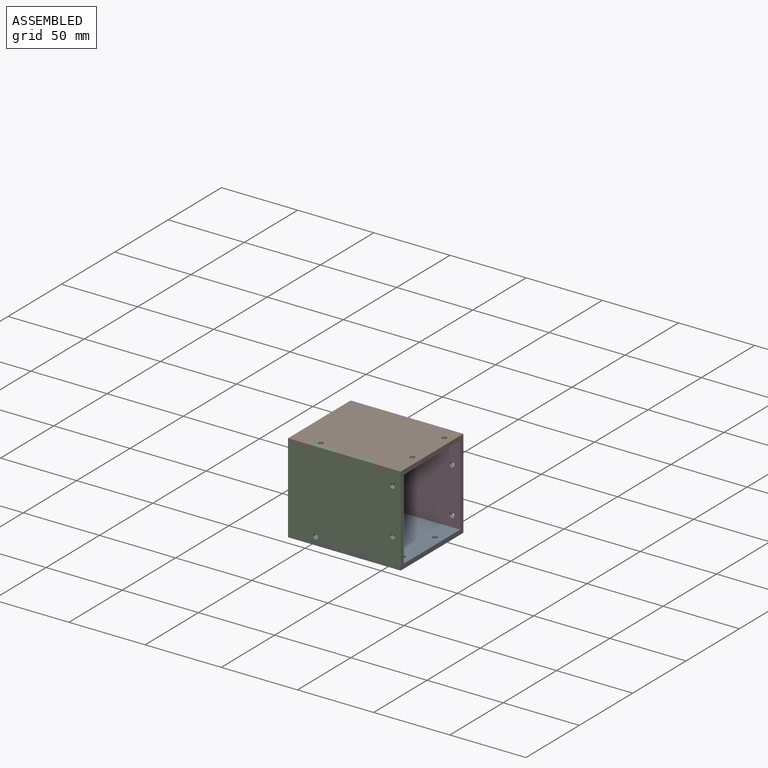
[diagram: assembled view]
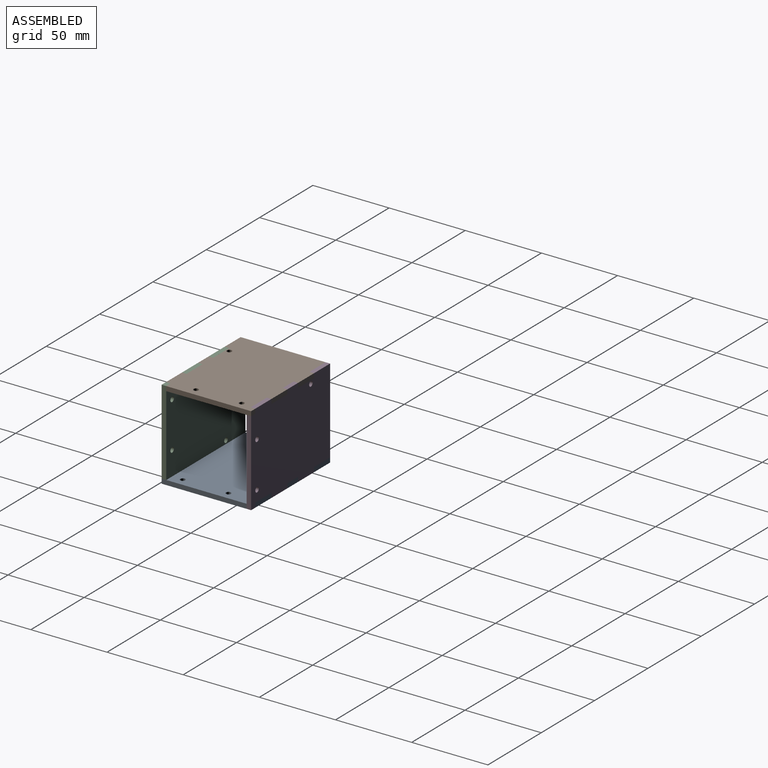
[diagram: assembled view, second angle]
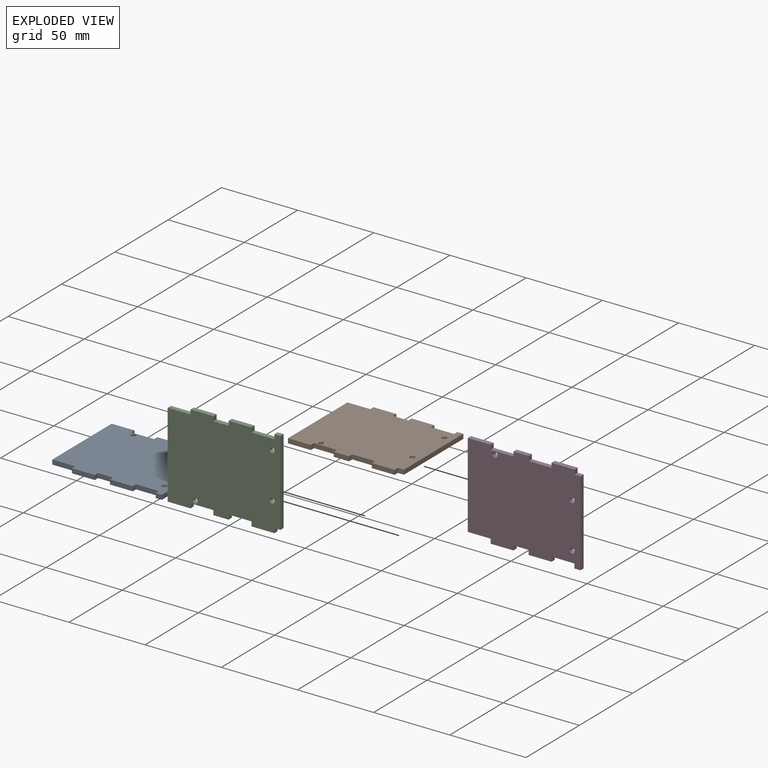
[diagram: exploded view]
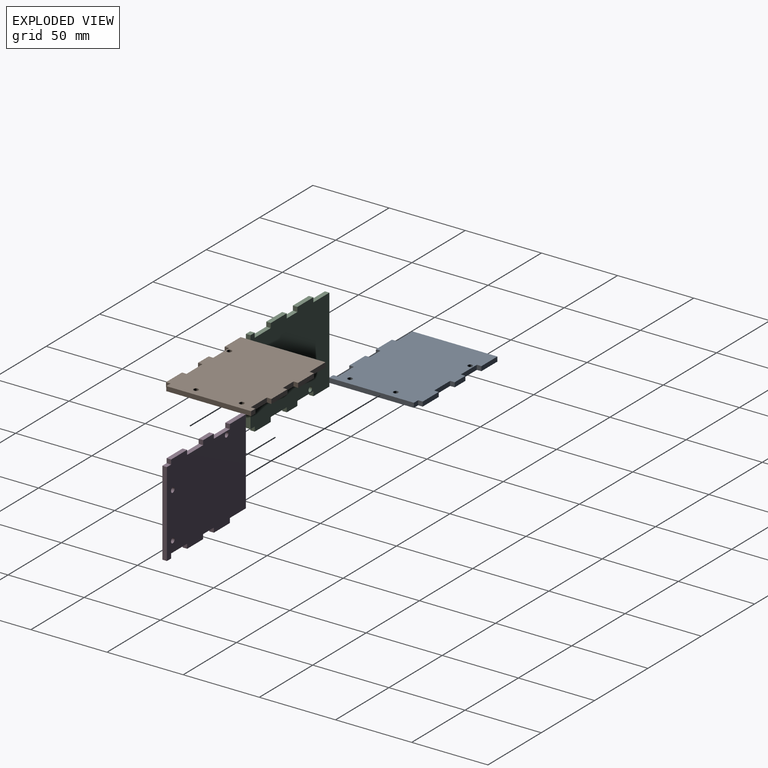
[diagram: exploded view, second angle]
ASSEMBLY  parts=4 mates=3
PART A: 29 faces, bbox 74x58.7x3 mm
  f0: plane 55.72x3mm, normal (-1,0,0), area 167.2mm2, adj f1,f25,f27,f28
  f1: plane 15x3mm, normal (0,-1,0), area 45mm2, adj f0,f2,f27,f28
  f2: plane 3x3mm, normal (-1,0,0), area 9mm2, adj f1,f3,f27,f28
  f3: plane 15x3mm, normal (0,-1,0), area 45mm2, adj f2,f4,f27,f28
  f4: plane 3x3mm, normal (1,0,0), area 9mm2, adj f3,f5,f27,f28
  f5: plane 10x3mm, normal (0,-1,0), area 30mm2, adj f4,f6,f27,f28
  f6: plane 3x3mm, normal (-1,0,0), area 9mm2, adj f5,f7,f27,f28
  f7: plane 15x3mm, normal (0,-1,0), area 45mm2, adj f6,f8,f27,f28
  f8: plane 3x3mm, normal (1,0,0), area 9mm2, adj f7,f9,f27,f28
  f9: plane 15x3mm, normal (0,-1,0), area 45mm2, adj f8,f10,f27,f28
  f10: plane 3x3mm, normal (-1,0,0), area 9mm2, adj f9,f11,f27,f28
  f11: plane 4x3mm, normal (0,-1,0), area 12mm2, adj f10,f12,f27,f28
  f12: plane 55.72x3mm, normal (1,0,0), area 167.2mm2, adj f11,f13,f27,f28
  f13: plane 4x3mm, normal (0,1,0), area 12mm2, adj f12,f14,f27,f28
  f14: plane 3x3mm, normal (1,0,0), area 9mm2, adj f13,f15,f27,f28
  f15: plane 15x3mm, normal (0,1,0), area 45mm2, adj f14,f16,f27,f28
  f16: plane 3x3mm, normal (-1,0,0), area 9mm2, adj f15,f17,f27,f28
  f17: plane 15x3mm, normal (0,1,0), area 45mm2, adj f16,f18,f27,f28
  f18: plane 3x3mm, normal (1,0,0), area 9mm2, adj f17,f19,f27,f28
  f19: plane 10x3mm, normal (0,1,0), area 30mm2, adj f18,f20,f27,f28
  f20: plane 3x3mm, normal (-1,0,0), area 9mm2, adj f19,f21,f27,f28
  f21: plane 15x3mm, normal (0,1,0), area 45mm2, adj f20,f22,f27,f28
  f22: plane 3x3mm, normal (1,0,0), area 9mm2, adj f21,f25,f27,f28
  f23: cylinder r=1.6mm len=3.2mm, axis (0,0,-1), area 30.2mm2, adj f27,f28
  f24: cylinder r=1.6mm len=3.2mm, axis (0,0,-1), area 30.2mm2, adj f27,f28
  f25: plane 15x3mm, normal (0,1,0), area 45mm2, adj f0,f22,f27,f28
  f26: cylinder r=1.6mm len=3.2mm, axis (0,0,-1), area 30.2mm2, adj f27,f28
  f27: plane 74x58.72mm, normal (0,0,1), area 4099.1mm2, adj f0,f1,f2,f3,f4,f5,f6,f7
  f28: plane 74x58.72mm, normal (0,0,-1), area 4099.1mm2, adj f0,f1,f2,f3,f4,f5,f6,f7
PART B: same geometry as A
PART C: same geometry as A
PART D: same geometry as A
PLACE A t=(-26.49,-17.28,32.21)mm
PLACE B rot(axis=(1,0,0),180deg) t=(-26.49,-17.56,90.93)mm
PLACE C rot(axis=(-1,0,0),90deg) t=(-26.49,-46.78,61.43)mm
PLACE D rot(axis=(1,0,0),90deg) t=(-26.49,11.94,61.71)mm
MATE fastened B.f22 <-> C.f2  axis (1,0,0) through (-48.49,-45.28,89.43)mm
MATE fastened C.f22 <-> A.f2  axis (1,0,0) through (-48.49,-45.28,33.71)mm
MATE fastened D.f14 <-> B.f10  axis (1,0,0) through (6.51,10.44,89.43)mm
